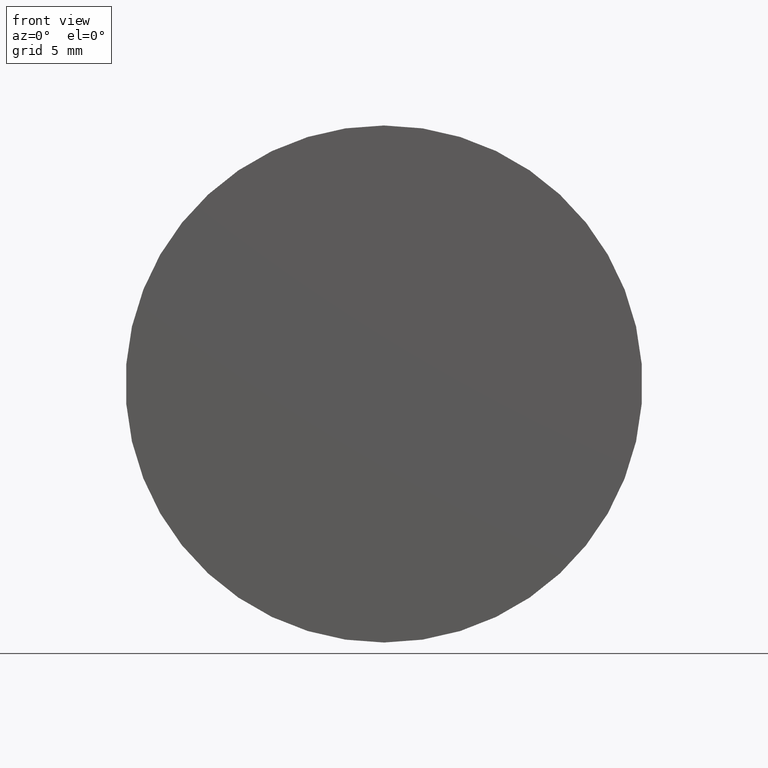
[diagram: clean part render]
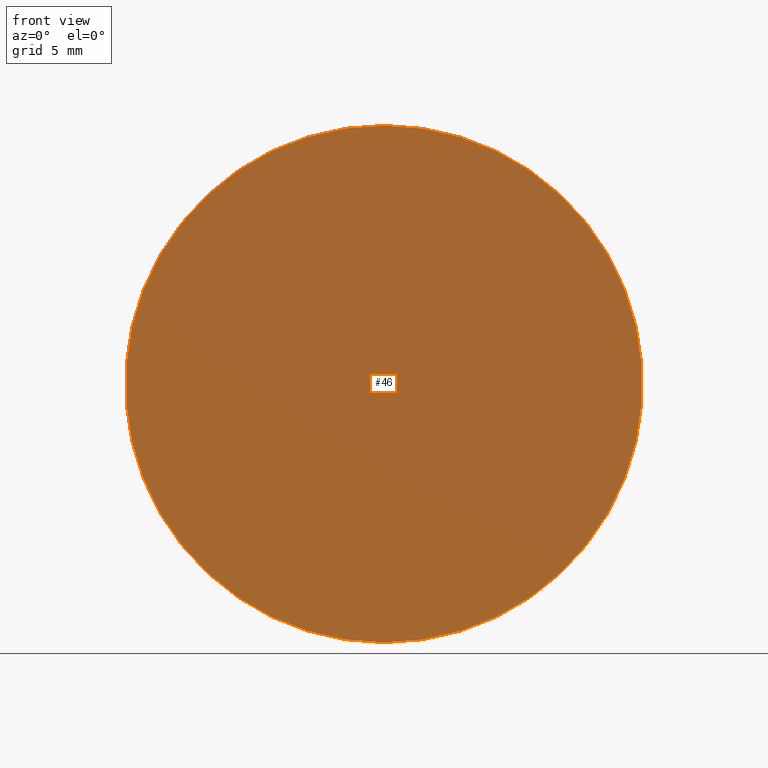
[diagram: same view with one face highlighted and labeled with its STEP entity id]
A machine part, front view. The second image highlights one B-rep face of the part: STEP entity #46.
In plain terms, the highlighted planar face has unit normal (0, -1, 0).
Its self-contained STEP definition (entity closure, byte-faithful):
#8 = DIRECTION ( 'NONE',  ( -0.000000000000000000, 1.000000000000000000, -0.000000000000000000 ) ) ;
#16 = DIRECTION ( 'NONE',  ( 0.000000000000000000, -0.000000000000000000, -1.000000000000000000 ) ) ;
#23 = AXIS2_PLACEMENT_3D ( 'NONE', #130, #8, #69 ) ;
#46 = ADVANCED_FACE ( 'NONE', ( #153 ), #135, .T. ) ;
#50 = CARTESIAN_POINT ( 'NONE',  ( 0.000000000000000000, -1.734723475976807094E-15, 0.000000000000000000 ) ) ;
#66 = AXIS2_PLACEMENT_3D ( 'NONE', #79, #188, #16 ) ;
#69 = DIRECTION ( 'NONE',  ( 0.000000000000000000, 0.000000000000000000, 1.000000000000000000 ) ) ;
#70 = EDGE_CURVE ( 'NONE', #164, #111, #89, .T. ) ;
#79 = CARTESIAN_POINT ( 'NONE',  ( 0.000000000000000000, -7.654042494670958593E-16, 0.000000000000000000 ) ) ;
#81 = AXIS2_PLACEMENT_3D ( 'NONE', #50, #170, #155 ) ;
#89 = CIRCLE ( 'NONE', #23, 12.50000000000000000 ) ;
#96 = CARTESIAN_POINT ( 'NONE',  ( 1.530808498934191521E-15, -1.734723475976807094E-15, -12.50000000000000000 ) ) ;
#111 = VERTEX_POINT ( 'NONE', #118 ) ;
#116 = EDGE_CURVE ( 'NONE', #111, #164, #141, .T. ) ;
#118 = CARTESIAN_POINT ( 'NONE',  ( 0.000000000000000000, -1.734723475976807094E-15, 12.50000000000000000 ) ) ;
#130 = CARTESIAN_POINT ( 'NONE',  ( 0.000000000000000000, -1.734723475976807094E-15, 0.000000000000000000 ) ) ;
#135 = PLANE ( 'NONE',  #66 ) ;
#141 = CIRCLE ( 'NONE', #81, 12.50000000000000000 ) ;
#153 = FACE_OUTER_BOUND ( 'NONE', #180, .T. ) ;
#154 = ORIENTED_EDGE ( 'NONE', *, *, #70, .F. ) ;
#155 = DIRECTION ( 'NONE',  ( 0.000000000000000000, 0.000000000000000000, 1.000000000000000000 ) ) ;
#164 = VERTEX_POINT ( 'NONE', #96 ) ;
#170 = DIRECTION ( 'NONE',  ( -0.000000000000000000, 1.000000000000000000, -0.000000000000000000 ) ) ;
#180 = EDGE_LOOP ( 'NONE', ( #200, #154 ) ) ;
#188 = DIRECTION ( 'NONE',  ( 0.000000000000000000, -1.000000000000000000, 0.000000000000000000 ) ) ;
#200 = ORIENTED_EDGE ( 'NONE', *, *, #116, .F. ) ;